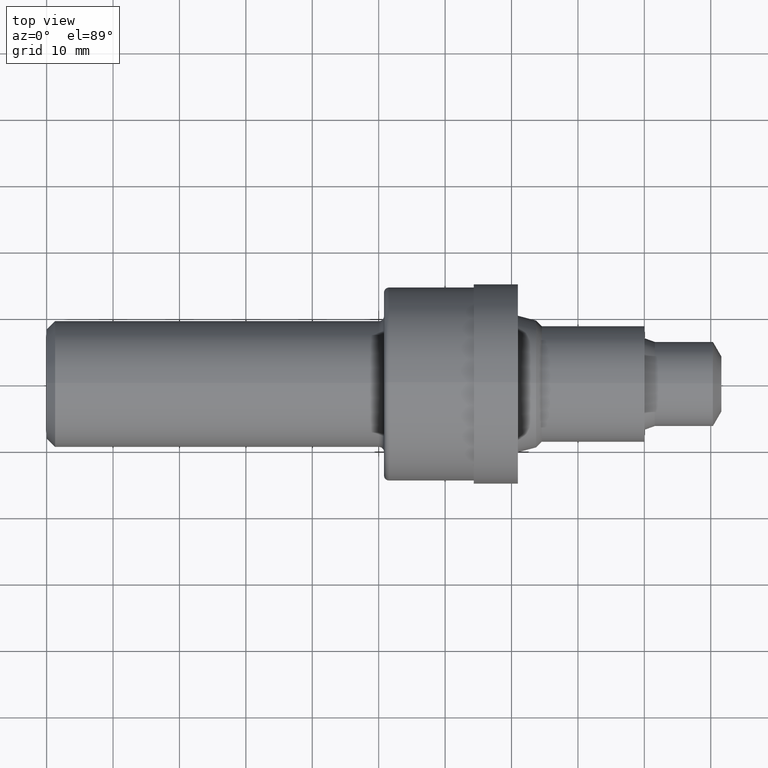
[diagram: clean part render]
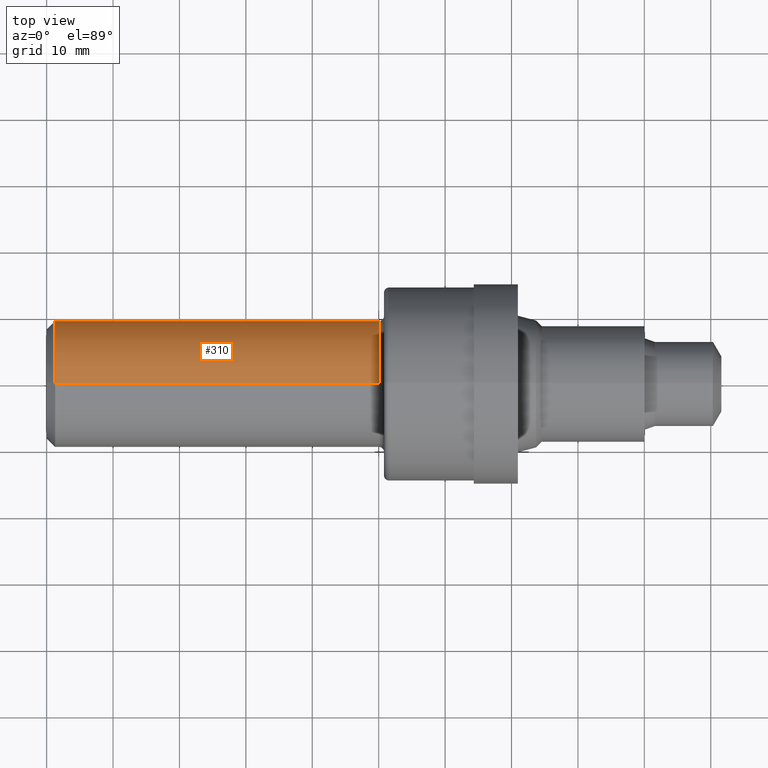
[diagram: same view with one face highlighted and labeled with its STEP entity id]
A machine part, top view. The second image highlights one B-rep face of the part: STEP entity #310.
In plain terms, the highlighted cylindrical surface (partial cylindrical patch) has radius 9.5212 mm, axis along (-1, -0, -0).
Its self-contained STEP definition (entity closure, byte-faithful):
#25 = DIRECTION ( 'NONE',  ( -1.000000000000000000, -0.0000000000000000000, -0.0000000000000000000 ) ) ;
#66 = EDGE_CURVE ( 'NONE', #348, #260, #350, .T. ) ;
#69 = VERTEX_POINT ( 'NONE', #98 ) ;
#82 = VERTEX_POINT ( 'NONE', #644 ) ;
#84 = ORIENTED_EDGE ( 'NONE', *, *, #566, .T. ) ;
#94 = CARTESIAN_POINT ( 'NONE',  ( 0.0000000000000000000, 0.0000000000000000000, 0.0000000000000000000 ) ) ;
#98 = CARTESIAN_POINT ( 'NONE',  ( 0.05000000000000000278, 4.590588526603853748E-17, 0.3748500000000000165 ) ) ;
#111 = AXIS2_PLACEMENT_3D ( 'NONE', #333, #704, #271 ) ;
#169 = ORIENTED_EDGE ( 'NONE', *, *, #572, .F. ) ;
#176 = VECTOR ( 'NONE', #797, 39.37007874015748143 ) ;
#198 = AXIS2_PLACEMENT_3D ( 'NONE', #785, #340, #281 ) ;
#214 = DIRECTION ( 'NONE',  ( -1.000000000000000000, -0.0000000000000000000, -0.0000000000000000000 ) ) ;
#251 = VECTOR ( 'NONE', #214, 39.37007874015748143 ) ;
#260 = VERTEX_POINT ( 'NONE', #339 ) ;
#271 = DIRECTION ( 'NONE',  ( 0.0000000000000000000, 0.0000000000000000000, 1.000000000000000000 ) ) ;
#281 = DIRECTION ( 'NONE',  ( 0.0000000000000000000, 0.0000000000000000000, 1.000000000000000000 ) ) ;
#286 = CARTESIAN_POINT ( 'NONE',  ( 0.0000000000000000000, 0.0000000000000000000, 0.3748500000000002386 ) ) ;
#310 = ADVANCED_FACE ( 'NONE', ( #507 ), #821, .T. ) ;
#332 = LINE ( 'NONE', #286, #176 ) ;
#333 = CARTESIAN_POINT ( 'NONE',  ( 0.05000000000000000278, 0.0000000000000000000, 0.0000000000000000000 ) ) ;
#339 = CARTESIAN_POINT ( 'NONE',  ( 1.969999999999999973, 4.590588526603859294E-17, -0.3748500000000005161 ) ) ;
#340 = DIRECTION ( 'NONE',  ( -1.000000000000000000, -0.0000000000000000000, -0.0000000000000000000 ) ) ;
#348 = VERTEX_POINT ( 'NONE', #654 ) ;
#350 = CIRCLE ( 'NONE', #198, 0.3748500000000005161 ) ;
#361 = EDGE_CURVE ( 'NONE', #348, #69, #332, .T. ) ;
#495 = ORIENTED_EDGE ( 'NONE', *, *, #66, .T. ) ;
#500 = EDGE_LOOP ( 'NONE', ( #495, #84, #169, #609 ) ) ;
#507 = FACE_OUTER_BOUND ( 'NONE', #500, .T. ) ;
#540 = CIRCLE ( 'NONE', #111, 0.3748500000000000165 ) ;
#566 = EDGE_CURVE ( 'NONE', #260, #82, #699, .T. ) ;
#572 = EDGE_CURVE ( 'NONE', #69, #82, #540, .T. ) ;
#609 = ORIENTED_EDGE ( 'NONE', *, *, #361, .F. ) ;
#636 = CARTESIAN_POINT ( 'NONE',  ( 0.0000000000000000000, 4.590588526603856213E-17, -0.3748500000000002386 ) ) ;
#644 = CARTESIAN_POINT ( 'NONE',  ( 0.05000000000000000278, 0.0000000000000000000, -0.3748500000000000165 ) ) ;
#654 = CARTESIAN_POINT ( 'NONE',  ( 1.969999999999999973, 0.0000000000000000000, 0.3748500000000005161 ) ) ;
#699 = LINE ( 'NONE', #636, #251 ) ;
#704 = DIRECTION ( 'NONE',  ( -1.000000000000000000, -0.0000000000000000000, -0.0000000000000000000 ) ) ;
#717 = DIRECTION ( 'NONE',  ( 0.0000000000000000000, 0.0000000000000000000, 1.000000000000000000 ) ) ;
#726 = AXIS2_PLACEMENT_3D ( 'NONE', #94, #25, #717 ) ;
#785 = CARTESIAN_POINT ( 'NONE',  ( 1.969999999999999973, 0.0000000000000000000, 0.0000000000000000000 ) ) ;
#797 = DIRECTION ( 'NONE',  ( -1.000000000000000000, -0.0000000000000000000, -0.0000000000000000000 ) ) ;
#821 = CYLINDRICAL_SURFACE ( 'NONE', #726, 0.3748500000000002386 ) ;